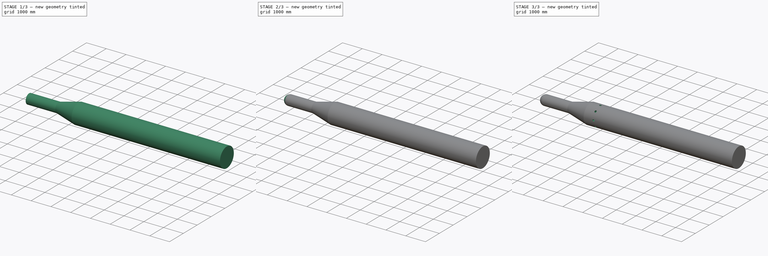
[diagram: build sequence overview — one tinted view per stage of 3, left to right]
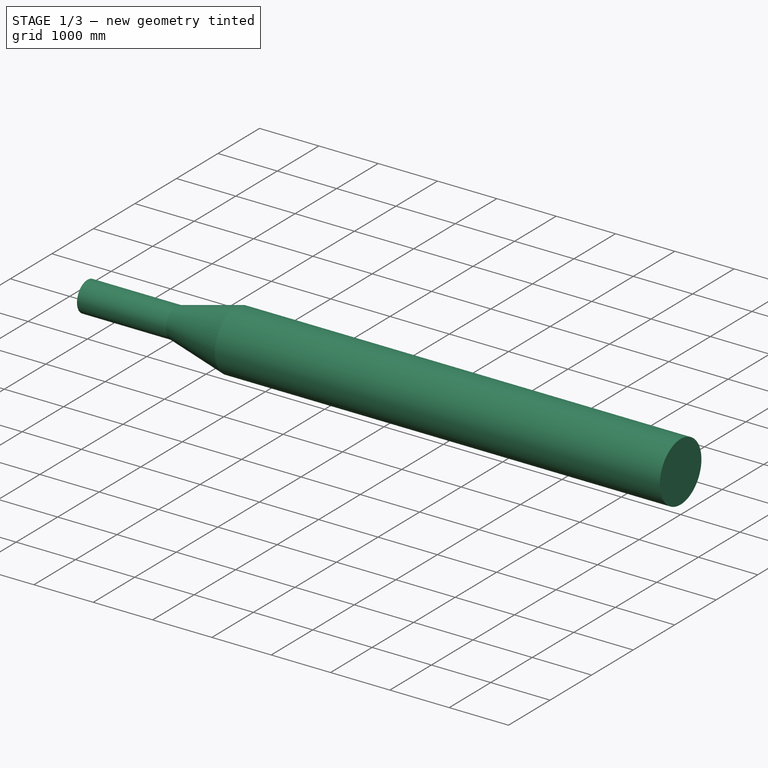
[diagram: stage 1 of 3 — iso view after this stage's code; geometry added in this stage tinted green]
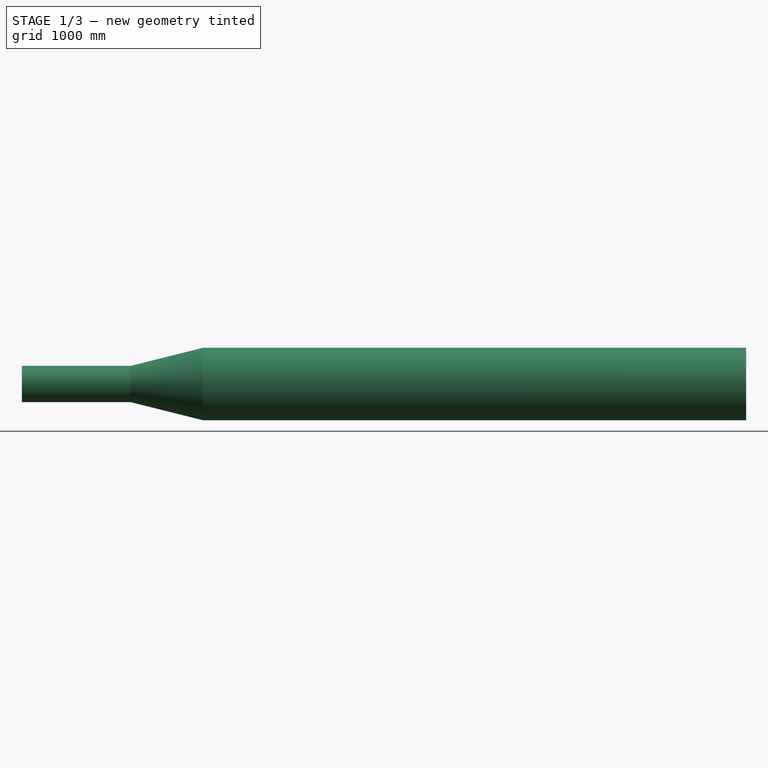
[diagram: stage 1 of 3 — front view after this stage's code; geometry added in this stage tinted green]
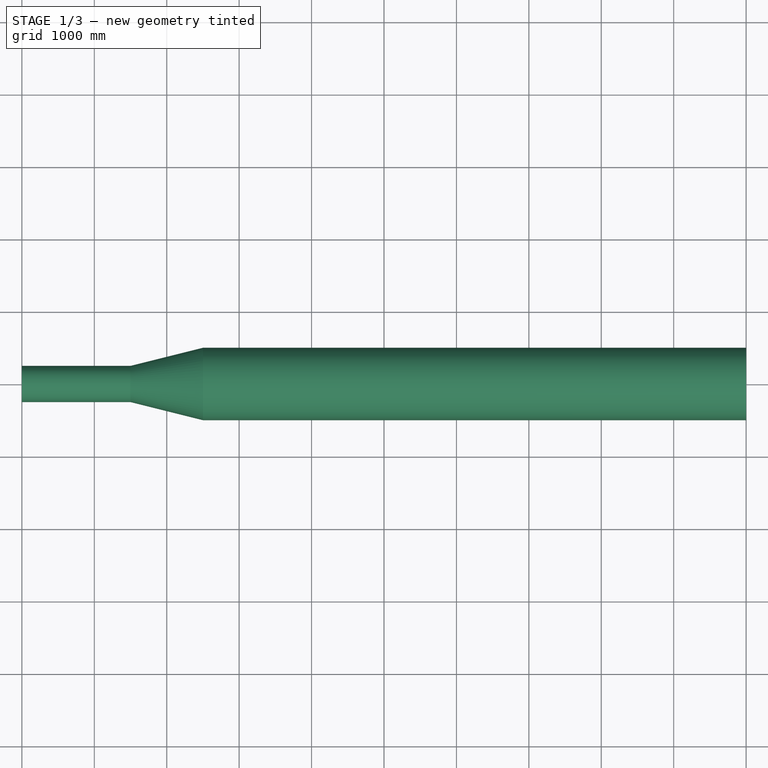
[diagram: stage 1 of 3 — top view after this stage's code; geometry added in this stage tinted green]
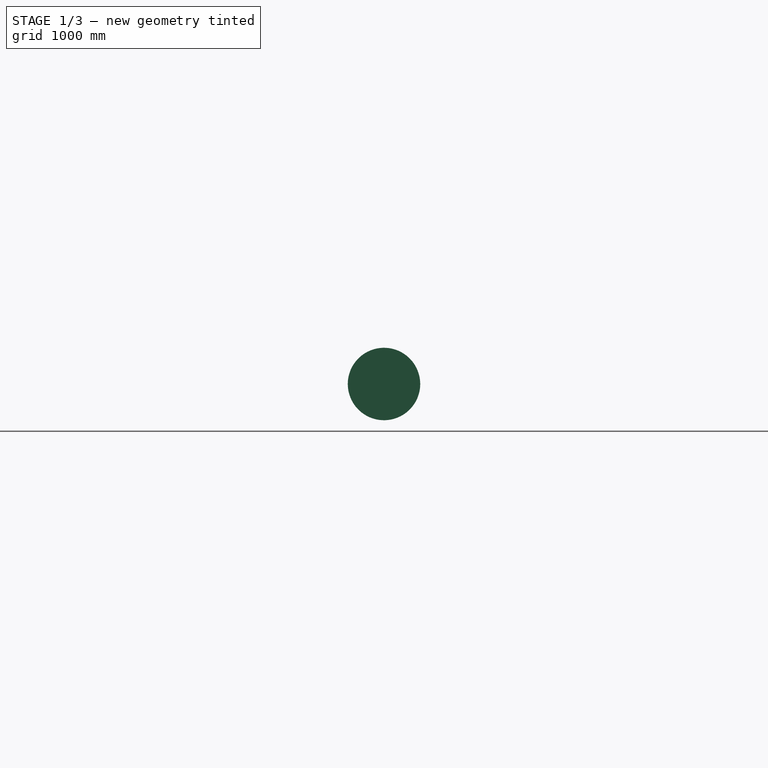
[diagram: stage 1 of 3 — right view after this stage's code; geometry added in this stage tinted green]
FCSTD DOCUMENT  (FreeCAD 0.18R15169 (Git))
Label: CFD_body_model_V2_FLAPS
License: All rights reserved
LicenseURL: http://en.wikipedia.org/wiki/All_rights_reserved
objects: Sketcher::SketchObject×4, PartDesign::Revolution×2, PartDesign::Groove×1, PartDesign::Plane×1, PartDesign::Pocket×1, PartDesign::PolarPattern×1, PartDesign::MultiTransform×1, PartDesign::Body×1
note: 16 computed .brp shape members not serialized (recipe doc carries the construction recipe); baked Part::Feature solids carry a one-line shape summary decoded from their .brp

FEATURE [Sketcher::SketchObject] Sketch
  MapMode = 5
  Support = -> [XY_Plane]
  sketch-geometry (6):
    g0: LineSegment StartX=-2500 StartY=500 StartZ=0 EndX=5000 EndY=500 EndZ=0
    g1: LineSegment StartX=-2500 StartY=500 StartZ=0 EndX=-2500 EndY=250 EndZ=0
    g2: LineSegment StartX=-2500 StartY=250 StartZ=0 EndX=-5000 EndY=250 EndZ=0
    g3: LineSegment StartX=-5000 StartY=250 StartZ=0 EndX=-5000 EndY=0 EndZ=0
    g4: LineSegment StartX=-5000 StartY=0 StartZ=0 EndX=5000 EndY=0 EndZ=0
    g5: LineSegment StartX=5000 StartY=0 StartZ=0 EndX=5000 EndY=500 EndZ=0
  constraints (17):
    c: Horizontal(g0)
    c: Distance(g0) = 7500
    c: Coincident(g1,g0)
    c: Vertical(g1)
    c: Coincident(g2,g1)
    c: Horizontal(g2)
    c: PointOnObject(g4,g-1)
    c: Vertical(g5)
    c: Vertical(g3)
    c: DistanceX(g2,g2) = 2500
    c: Coincident(g2,g3)
    c: Coincident(g3,g4)
    c: Coincident(g5,g0)
    c: Coincident(g5,g4)
    c: Symmetric(g4,g3,g-2)
    c: Distance(g5) = 500
    c: Distance(g3) = 250
FEATURE [PartDesign::Revolution] Revolution
  Angle = 360
  Axis = (1,0,0)
  Base = (0,0,0)
  Profile = -> Sketch
  ReferenceAxis = -> Sketch [H_Axis]
  Refine = true
FEATURE [Sketcher::SketchObject] Sketch001
  ExternalGeometry = -> [Revolution]
  MapMode = 5
  Support = -> [XY_Plane]
  sketch-geometry (3):
    g0: LineSegment StartX=-2500 StartY=500 StartZ=0 EndX=-3500 EndY=250 EndZ=0
    g1: LineSegment StartX=-3500 StartY=250 StartZ=0 EndX=-2500 EndY=250 EndZ=0
    g2: LineSegment StartX=-2500 StartY=250 StartZ=0 EndX=-2500 EndY=500 EndZ=0
  constraints (9):
    c: PointOnObject(g0,g-5)
    c: Coincident(g1,g0)
    c: Horizontal(g1)
    c: Vertical(g2)
    c: Coincident(g2,g0)
    c: Coincident(g2,g-4)
    c: PointOnObject(g1,g-3)
    c: Distance(g1) = 1000
    c: Distance(g2) = 250
FEATURE [PartDesign::Revolution] Revolution001
  Angle = 360
  Axis = (1,0,0)
  Base = (0,0,0)
  BaseFeature = -> Revolution
  Profile = -> Sketch001
  ReferenceAxis = -> Sketch001 [H_Axis]
  Refine = true
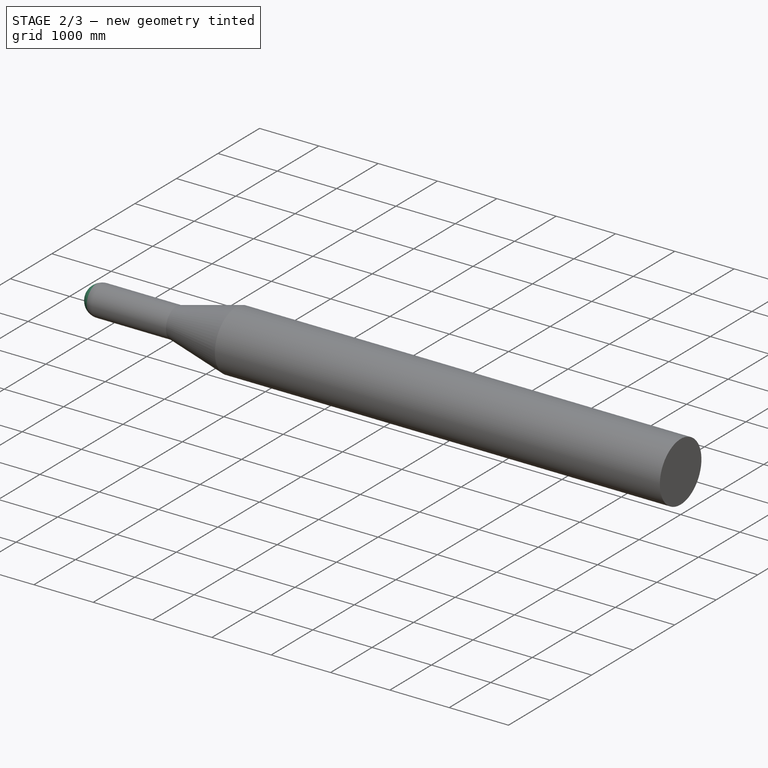
[diagram: stage 2 of 3 — iso view after this stage's code; geometry added in this stage tinted green]
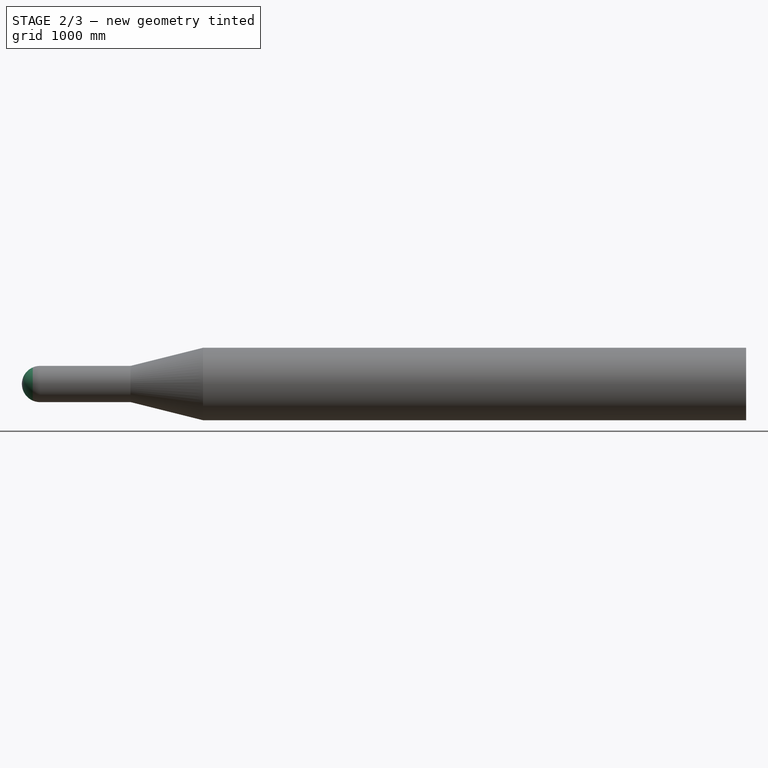
[diagram: stage 2 of 3 — front view after this stage's code; geometry added in this stage tinted green]
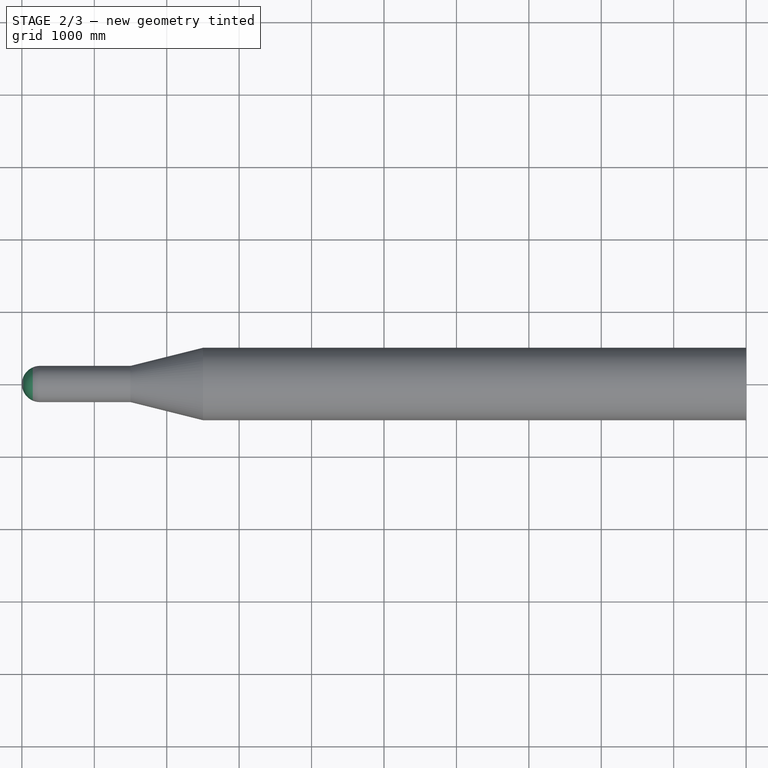
[diagram: stage 2 of 3 — top view after this stage's code; geometry added in this stage tinted green]
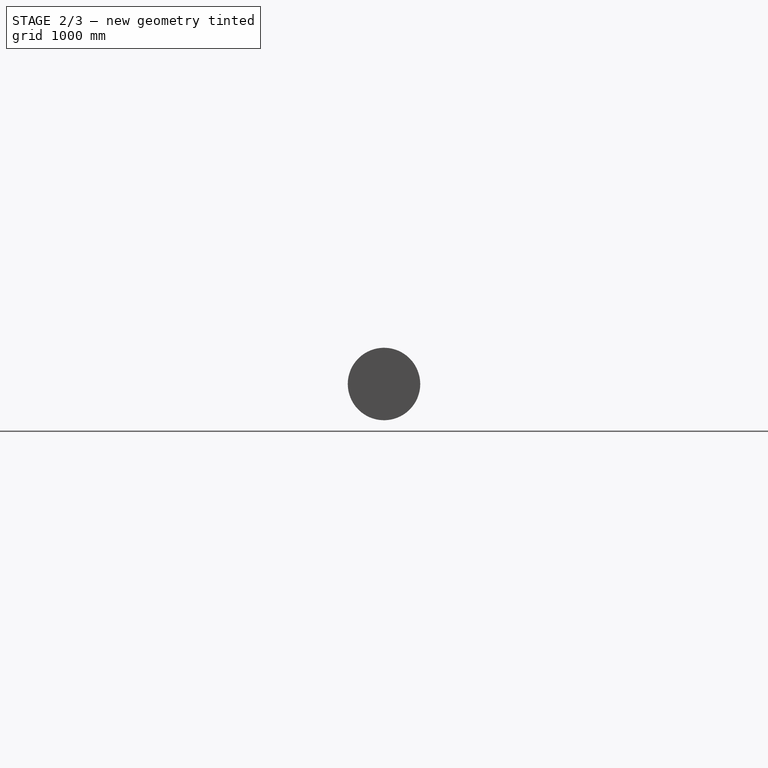
[diagram: stage 2 of 3 — right view after this stage's code; geometry added in this stage tinted green]
FEATURE [Sketcher::SketchObject] Sketch002
  ExternalGeometry = -> [Revolution001]
  MapMode = 5
  Support = -> [XY_Plane]
  sketch-geometry (5):
    g0: ArcOfCircle CenterX=-4750 CenterY=0 CenterZ=0 NormalX=0 NormalY=0 NormalZ=1 AngleXU=0 Radius=250 StartAngle=1.5708 EndAngle=3.14159
    g1: LineSegment StartX=-5250 StartY=500 StartZ=0 EndX=-4750 EndY=500 EndZ=0
    g2: LineSegment StartX=-4750 StartY=500 StartZ=0 EndX=-4750 EndY=250 EndZ=0
    g3: LineSegment StartX=-5250 StartY=0 StartZ=0 EndX=-5250 EndY=500 EndZ=0
    g4: LineSegment StartX=-5000 StartY=0 StartZ=0 EndX=-5250 EndY=0 EndZ=0
  constraints (17):
    c: Radius(g0) = 250
    c: Tangent(g0,g-4)
    c: Coincident(g1,g2)
    c: Coincident(g3,g1)
    c: Horizontal(g1)
    c: Vertical(g2)
    c: Vertical(g3)
    c: Horizontal(g4)
    c: Coincident(g4,g3)
    c: PointOnObject(g3,g-1)
    c: Tangent(g0,g-3)
    c: PointOnObject(g4,g-3)
    c: PointOnObject(g0,g-1)
    c: Equal(g1,g3)
    c: Distance(g3) = 500
    c: Coincident(g0,g2)
    c: PointOnObject(g0,g-4)
FEATURE [PartDesign::Groove] Groove
  Angle = 360
  Axis = (1,0,0)
  Base = (0,0,0)
  BaseFeature = -> Revolution001
  Profile = -> Sketch002
  ReferenceAxis = -> Sketch002 [H_Axis]
  Refine = true
  Reversed = true
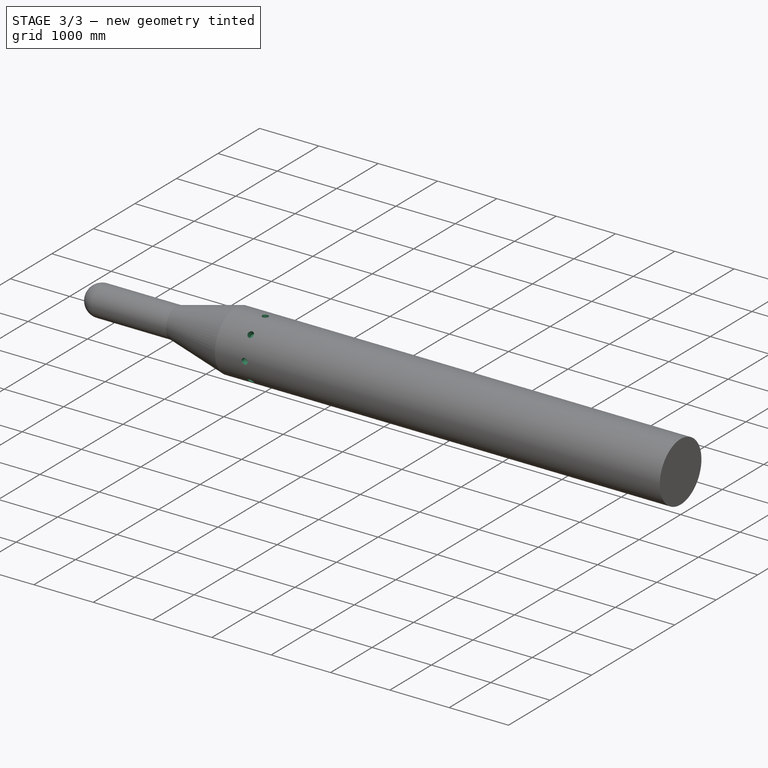
[diagram: stage 3 of 3 — iso view after this stage's code; geometry added in this stage tinted green]
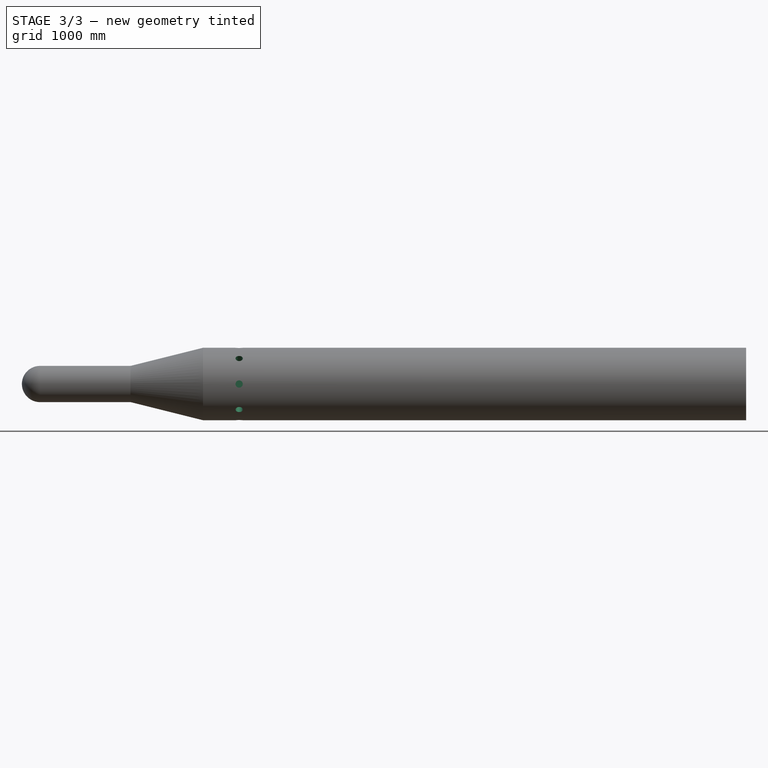
[diagram: stage 3 of 3 — front view after this stage's code; geometry added in this stage tinted green]
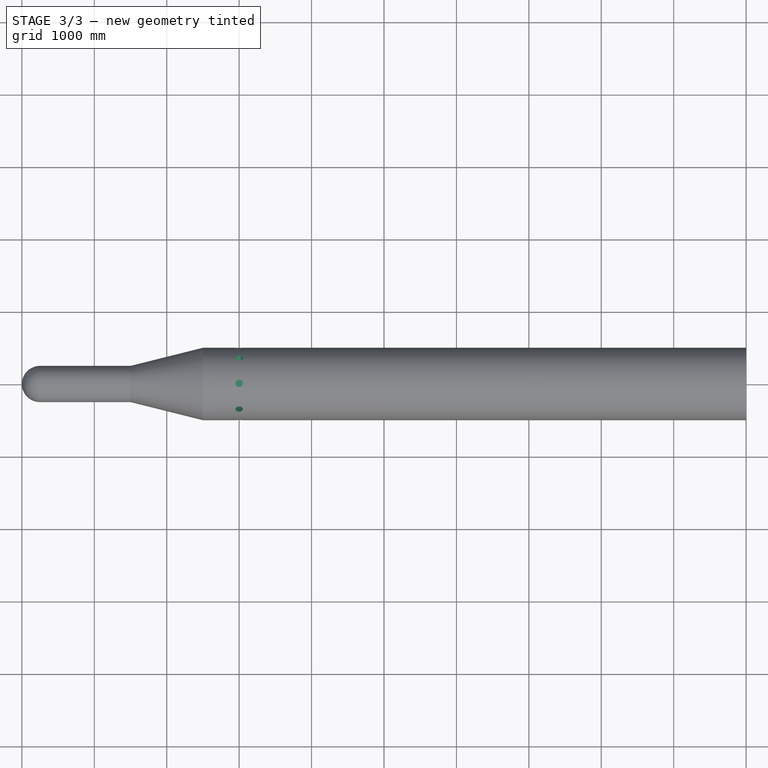
[diagram: stage 3 of 3 — top view after this stage's code; geometry added in this stage tinted green]
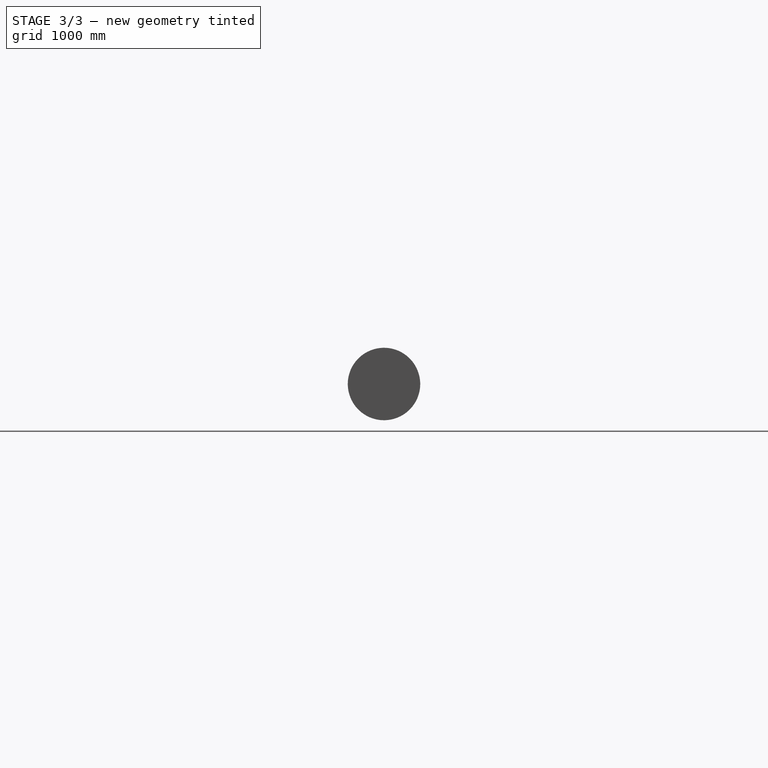
[diagram: stage 3 of 3 — right view after this stage's code; geometry added in this stage tinted green]
FEATURE [PartDesign::Plane] DatumPlane
  AttachmentOffset = pos=(0,0,500) rot=(0,0,1;0rad)
  Length = 10632.5
  MapMode = 5
  Placement = pos=(0,-500,-5.2e-11) rot=(1,0,0;1.5708rad)
  ResizeMode = 0
  Support = -> [XZ_Plane]
  Width = 1632.46
FEATURE [Sketcher::SketchObject] Sketch003
  MapMode = 5
  Placement = pos=(0,-500,-5.2e-11) rot=(1,0,0;1.5708rad)
  Support = -> [DatumPlane]
  sketch-geometry (1):
    g0: Circle CenterX=-2000 CenterY=0 CenterZ=0 NormalX=0 NormalY=0 NormalZ=1 AngleXU=0 Radius=50
  constraints (3):
    c: Radius(g0) = 50
    c: PointOnObject(g0,g-1)
    c: Distance(g-1,g0) = 2000
FEATURE [PartDesign::Pocket] Pocket
  BaseFeature = -> Groove
  Length = 100
  Length2 = 100
  Profile = -> Sketch003
  Refine = true
  Type = 0
FEATURE [PartDesign::PolarPattern] PolarPattern
  Angle = 360
  Axis = -> X_Axis
  Occurrences = 8
  Refine = true
FEATURE [PartDesign::MultiTransform] MultiTransform
  BaseFeature = -> Pocket
  Originals = -> [Pocket]
  Refine = true
  Transformations = -> [PolarPattern]
FEATURE [PartDesign::Body] Body
  Group = -> [Sketch,Revolution,Sketch001,Revolution001,Sketch002,Groove,DatumPlane,Sketch003,Pocket,MultiTransform,PolarPattern]
  Origin = -> Origin
  Tip = -> MultiTransform
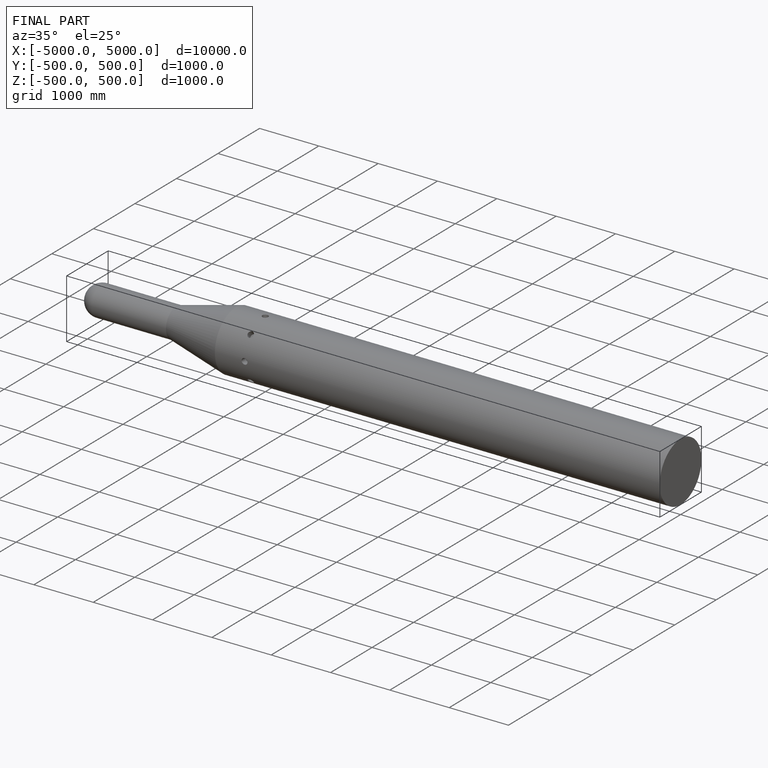
[diagram: finished part — iso view with bounding-box wireframe]
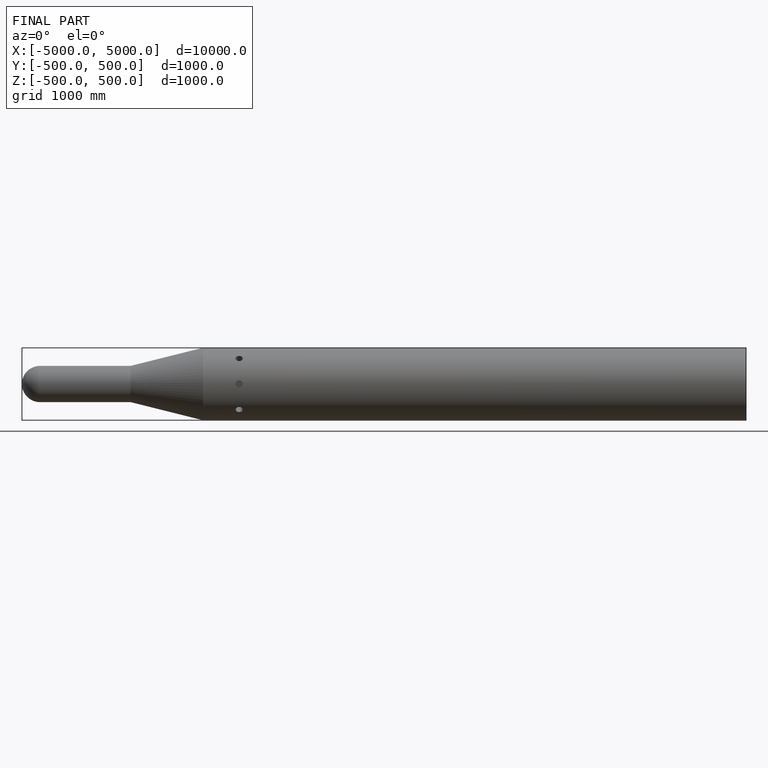
[diagram: finished part — front view with bounding-box wireframe]
